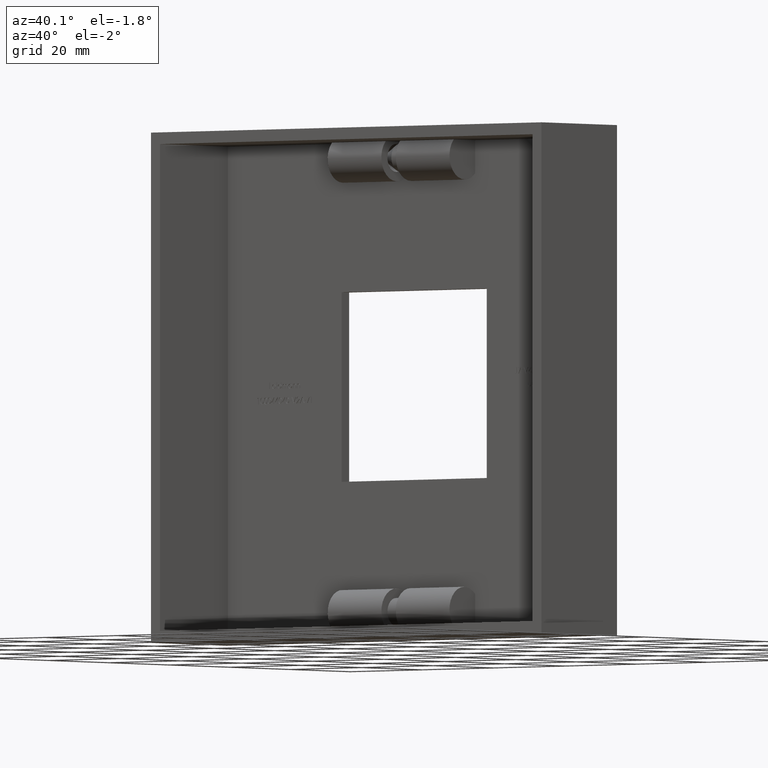
[diagram: clean part render]
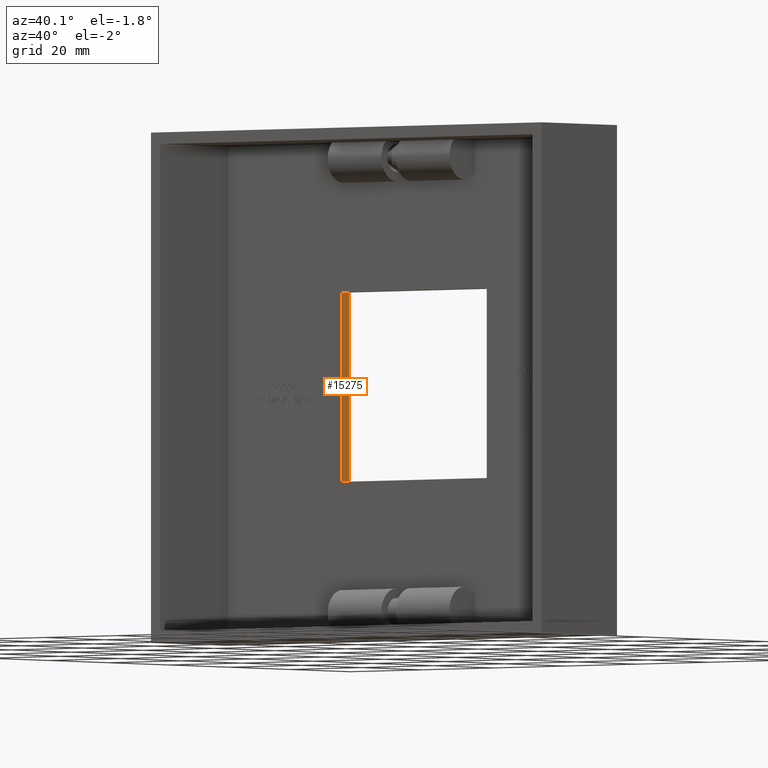
[diagram: same view with one face highlighted and labeled with its STEP entity id]
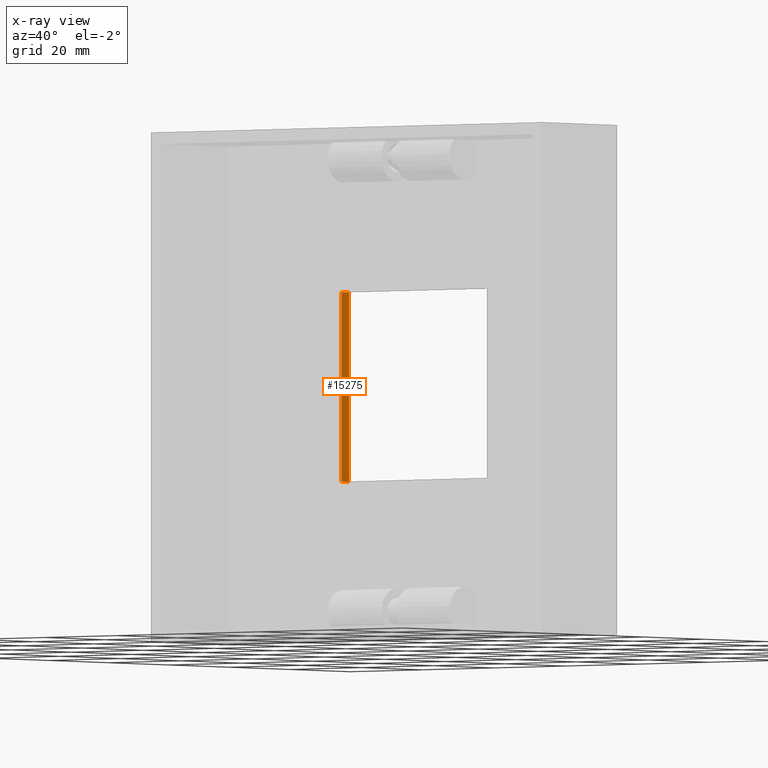
[diagram: x-ray of the same camera — body ghosted, the highlighted face saturated]
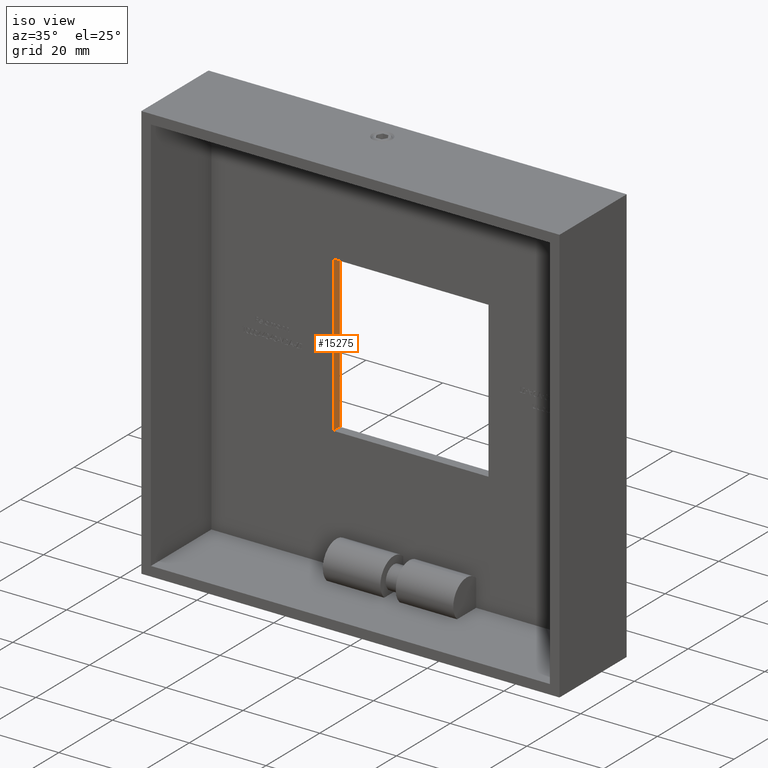
[diagram: same view with one face highlighted and labeled with its STEP entity id]
A machine part, auxiliary view. The second image highlights one B-rep face of the part: STEP entity #15275.
The next image is the same camera in x-ray: the body ghosted, the highlighted face saturated — about 0% of this face is hidden behind the body in this view.
A second angle (iso view) of the same face is appended — the face is thin or edge-on in the first view.
In plain terms, the highlighted planar face has unit normal (-1, 0, 0).
Its self-contained STEP definition (entity closure, byte-faithful):
#919 = DIRECTION ( 'NONE',  ( -0.0000000000000000000, -0.0000000000000000000, 1.000000000000000000 ) ) ;
#1466 = CARTESIAN_POINT ( 'NONE',  ( 7.000000000000009800, 0.0000000000000000000, 20.25000000000000400 ) ) ;
#1993 = VECTOR ( 'NONE', #9129, 1000.000000000000000 ) ;
#2227 = CARTESIAN_POINT ( 'NONE',  ( 7.000000000000009800, 22.50000000000000400, -20.25000000000000400 ) ) ;
#2239 = LINE ( 'NONE', #6533, #5347 ) ;
#2551 = EDGE_LOOP ( 'NONE', ( #4767, #11772, #3152, #7394 ) ) ;
#2776 = VECTOR ( 'NONE', #3890, 1000.000000000000000 ) ;
#3152 = ORIENTED_EDGE ( 'NONE', *, *, #11266, .F. ) ;
#3405 = CARTESIAN_POINT ( 'NONE',  ( 7.000000000000009800, 25.00000000000000000, 20.25000000000000400 ) ) ;
#3890 = DIRECTION ( 'NONE',  ( 0.0000000000000000000, 0.0000000000000000000, 1.000000000000000000 ) ) ;
#4005 = LINE ( 'NONE', #17081, #2776 ) ;
#4101 = PLANE ( 'NONE',  #9650 ) ;
#4745 = LINE ( 'NONE', #14289, #16548 ) ;
#4767 = ORIENTED_EDGE ( 'NONE', *, *, #16159, .T. ) ;
#5347 = VECTOR ( 'NONE', #15682, 1000.000000000000000 ) ;
#6204 = EDGE_CURVE ( 'NONE', #13969, #16964, #4005, .T. ) ;
#6533 = CARTESIAN_POINT ( 'NONE',  ( 7.000000000000009800, 0.0000000000000000000, -20.25000000000000400 ) ) ;
#7394 = ORIENTED_EDGE ( 'NONE', *, *, #6204, .F. ) ;
#9129 = DIRECTION ( 'NONE',  ( -0.0000000000000000000, 1.000000000000000000, -0.0000000000000000000 ) ) ;
#9650 = AXIS2_PLACEMENT_3D ( 'NONE', #1466, #15917, #11988 ) ;
#11171 = CARTESIAN_POINT ( 'NONE',  ( 7.000000000000009800, 22.50000000000000400, 20.25000000000000400 ) ) ;
#11266 = EDGE_CURVE ( 'NONE', #16964, #15180, #12935, .T. ) ;
#11772 = ORIENTED_EDGE ( 'NONE', *, *, #15000, .T. ) ;
#11988 = DIRECTION ( 'NONE',  ( -0.0000000000000000000, 0.0000000000000000000, 1.000000000000000000 ) ) ;
#12935 = LINE ( 'NONE', #14256, #1993 ) ;
#13011 = FACE_OUTER_BOUND ( 'NONE', #2551, .T. ) ;
#13969 = VERTEX_POINT ( 'NONE', #2227 ) ;
#14256 = CARTESIAN_POINT ( 'NONE',  ( 7.000000000000009800, 0.0000000000000000000, 20.25000000000000400 ) ) ;
#14279 = CARTESIAN_POINT ( 'NONE',  ( 7.000000000000009800, 25.00000000000000000, -20.25000000000000400 ) ) ;
#14289 = CARTESIAN_POINT ( 'NONE',  ( 7.000000000000009800, 25.00000000000000000, 20.25000000000000400 ) ) ;
#15000 = EDGE_CURVE ( 'NONE', #16205, #15180, #4745, .T. ) ;
#15180 = VERTEX_POINT ( 'NONE', #3405 ) ;
#15275 = ADVANCED_FACE ( 'NONE', ( #13011 ), #4101, .F. ) ;
#15682 = DIRECTION ( 'NONE',  ( -0.0000000000000000000, 1.000000000000000000, -0.0000000000000000000 ) ) ;
#15917 = DIRECTION ( 'NONE',  ( -1.000000000000000000, 0.0000000000000000000, -0.0000000000000000000 ) ) ;
#16159 = EDGE_CURVE ( 'NONE', #13969, #16205, #2239, .T. ) ;
#16205 = VERTEX_POINT ( 'NONE', #14279 ) ;
#16548 = VECTOR ( 'NONE', #919, 1000.000000000000000 ) ;
#16964 = VERTEX_POINT ( 'NONE', #11171 ) ;
#17081 = CARTESIAN_POINT ( 'NONE',  ( 7.000000000000009800, 22.50000000000000400, 0.0000000000000000000 ) ) ;